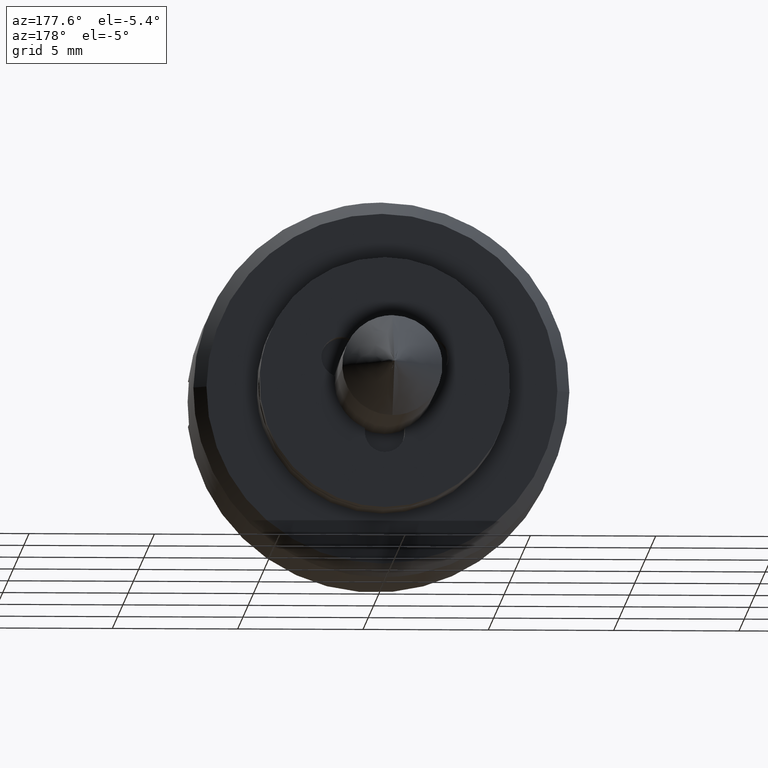
[diagram: clean part render]
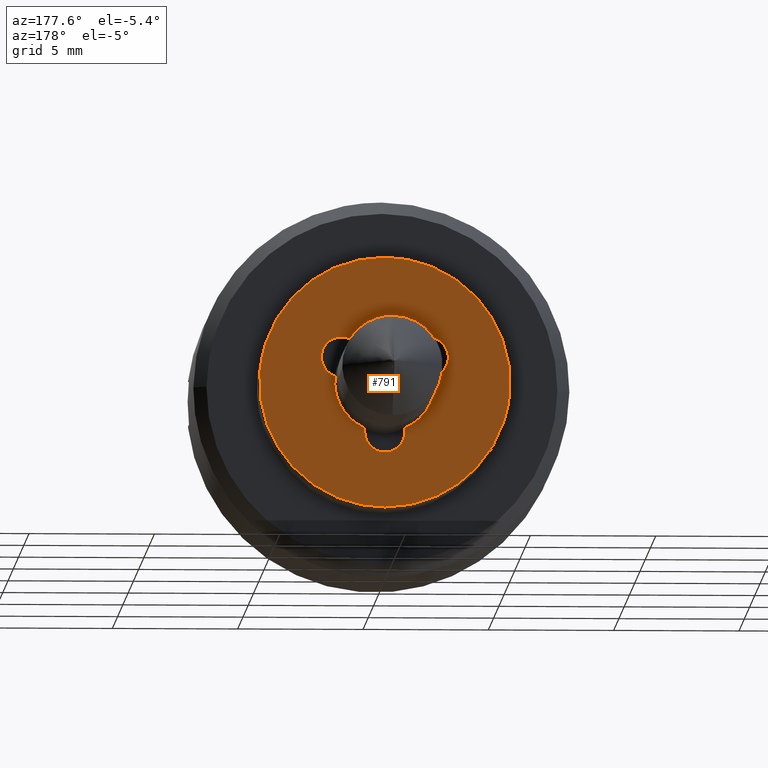
[diagram: same view with one face highlighted and labeled with its STEP entity id]
A machine part, auxiliary view. The second image highlights one B-rep face of the part: STEP entity #791.
In plain terms, the highlighted face is a freeform B-spline surface patch.
Its self-contained STEP definition (entity closure, byte-faithful):
#79=CARTESIAN_POINT('',(0.800000000000023,-4.984587023627478,0.392290968369244));
#80=VERTEX_POINT('',#79);
#86=CARTESIAN_POINT('',(0.800000000000023,0.0,5.0));
#87=VERTEX_POINT('',#86);
#88=CARTESIAN_POINT('',(0.800000000000023,0.0,5.0));
#89=CARTESIAN_POINT('',(0.800000000000023,-4.621956653367342,5.0));
#90=CARTESIAN_POINT('',(0.800000000000023,-4.984587023627478,0.392290968369244));
#98=(BOUNDED_CURVE()B_SPLINE_CURVE(2,(#88,#89,#90),.UNSPECIFIED.,.F.,.U.)B_SPLINE_CURVE_WITH_KNOTS((3,3),(0.0,0.236331455745088),.UNSPECIFIED.)CURVE()GEOMETRIC_REPRESENTATION_ITEM()RATIONAL_B_SPLINE_CURVE((1.0,0.723120476879809,0.969723679879621))REPRESENTATION_ITEM(''));
#99=EDGE_CURVE('',#87,#80,#98,.T.);
#101=CARTESIAN_POINT('',(0.800000000000023,4.984587023627478,-0.392290968369244));
#102=VERTEX_POINT('',#101);
#103=CARTESIAN_POINT('',(0.800000000000023,4.984587023627478,-0.392290968369244));
#104=CARTESIAN_POINT('',(0.800000000000023,5.0,-0.196448269438189));
#105=CARTESIAN_POINT('',(0.800000000000023,5.0,0.0));
#106=CARTESIAN_POINT('',(0.800000000000023,5.000000000000001,5.000000000000001));
#107=CARTESIAN_POINT('',(0.800000000000023,0.0,5.0));
#115=(BOUNDED_CURVE()B_SPLINE_CURVE(2,(#103,#104,#105,#106,#107),.UNSPECIFIED.,.F.,.U.)B_SPLINE_CURVE_WITH_KNOTS((3,2,3),(0.736331455745088,0.750000000000000,1.0),.UNSPECIFIED.)CURVE()GEOMETRIC_REPRESENTATION_ITEM()RATIONAL_B_SPLINE_CURVE((0.969723679879621,0.983986304306739,1.0,0.707106781186548,1.0))REPRESENTATION_ITEM(''));
#116=EDGE_CURVE('',#102,#87,#115,.T.);
#192=CARTESIAN_POINT('',(0.800000000000023,0.0,-5.0));
#193=VERTEX_POINT('',#192);
#194=CARTESIAN_POINT('',(0.800000000000023,0.0,-5.0));
#195=CARTESIAN_POINT('',(0.800000000000023,4.621956653367344,-5.000000000000001));
#196=CARTESIAN_POINT('',(0.800000000000023,4.984587023627478,-0.392290968369244));
#204=(BOUNDED_CURVE()B_SPLINE_CURVE(2,(#194,#195,#196),.UNSPECIFIED.,.F.,.U.)B_SPLINE_CURVE_WITH_KNOTS((3,3),(0.500000000000000,0.736331455745088),.UNSPECIFIED.)CURVE()GEOMETRIC_REPRESENTATION_ITEM()RATIONAL_B_SPLINE_CURVE((1.0,0.723120476879809,0.969723679879621))REPRESENTATION_ITEM(''));
#205=EDGE_CURVE('',#193,#102,#204,.T.);
#207=CARTESIAN_POINT('',(0.800000000000023,-4.984587023627478,0.392290968369244));
#208=CARTESIAN_POINT('',(0.800000000000023,-5.000000000000001,0.196448269438190));
#209=CARTESIAN_POINT('',(0.800000000000023,-5.0,0.0));
#210=CARTESIAN_POINT('',(0.800000000000023,-5.000000000000001,-5.000000000000001));
#211=CARTESIAN_POINT('',(0.800000000000023,0.0,-5.0));
#219=(BOUNDED_CURVE()B_SPLINE_CURVE(2,(#207,#208,#209,#210,#211),.UNSPECIFIED.,.F.,.U.)B_SPLINE_CURVE_WITH_KNOTS((3,2,3),(0.236331455745088,0.250000000000000,0.500000000000000),.UNSPECIFIED.)CURVE()GEOMETRIC_REPRESENTATION_ITEM()RATIONAL_B_SPLINE_CURVE((0.969723679879621,0.983986304306738,1.0,0.707106781186548,1.0))REPRESENTATION_ITEM(''));
#220=EDGE_CURVE('',#80,#193,#219,.T.);
#231=CARTESIAN_POINT('',(0.799999999999983,1.987450786638745,0.223694815963686));
#232=VERTEX_POINT('',#231);
#233=CARTESIAN_POINT('',(0.800000000000023,2.132097073922095,0.307206388863954));
#234=VERTEX_POINT('',#233);
#235=CARTESIAN_POINT('',(0.799999999999983,1.987450786638745,0.223694815963686));
#236=CARTESIAN_POINT('',(0.800000000000023,2.132097073922095,0.307206388863954));
#237=QUASI_UNIFORM_CURVE('',1,(#235,#236),.UNSPECIFIED.,.F.,.U.);
#238=EDGE_CURVE('',#232,#234,#237,.T.);
#276=CARTESIAN_POINT('',(0.800000000000023,0.800000000000000,-1.833030277982340));
#277=VERTEX_POINT('',#276);
#278=CARTESIAN_POINT('',(0.800000000000023,0.799999999999998,-1.833030277982337));
#279=CARTESIAN_POINT('',(0.800000000000023,2.152504370215349,-1.242748977575631));
#280=CARTESIAN_POINT('',(0.799999999999983,1.987450786638745,0.223694815963686));
#288=(BOUNDED_CURVE()B_SPLINE_CURVE(2,(#278,#279,#280),.UNSPECIFIED.,.F.,.U.)CURVE()GEOMETRIC_REPRESENTATION_ITEM()QUASI_UNIFORM_CURVE()RATIONAL_B_SPLINE_CURVE((1.0,0.804667731009349,1.0))REPRESENTATION_ITEM(''));
#289=EDGE_CURVE('',#277,#232,#288,.T.);
#320=CARTESIAN_POINT('',(0.800000000000023,0.800000000000000,-2.0));
#321=VERTEX_POINT('',#320);
#322=CARTESIAN_POINT('',(0.800000000000023,0.800000000000000,-2.0));
#323=CARTESIAN_POINT('',(0.800000000000023,0.800000000000000,-1.833030277982340));
#324=QUASI_UNIFORM_CURVE('',1,(#322,#323),.UNSPECIFIED.,.F.,.U.);
#325=EDGE_CURVE('',#321,#277,#324,.T.);
#361=CARTESIAN_POINT('',(0.800000000000023,-0.800000000000097,-2.0));
#362=VERTEX_POINT('',#361);
#363=CARTESIAN_POINT('',(0.800000000000023,-0.800000000000097,-2.0));
#364=CARTESIAN_POINT('',(0.800000000000023,-0.800000000000000,-2.800000000000000));
#365=CARTESIAN_POINT('',(0.800000000000023,0.0,-2.800000000000000));
#366=CARTESIAN_POINT('',(0.800000000000023,0.800000000000000,-2.800000000000000));
#367=CARTESIAN_POINT('',(0.800000000000023,0.800000000000000,-2.0));
#375=(BOUNDED_CURVE()B_SPLINE_CURVE(2,(#363,#364,#365,#366,#367),.UNSPECIFIED.,.F.,.U.)B_SPLINE_CURVE_WITH_KNOTS((3,2,3),(0.0,0.500000000000000,1.0),.UNSPECIFIED.)CURVE()GEOMETRIC_REPRESENTATION_ITEM()RATIONAL_B_SPLINE_CURVE((1.0,0.707106781186548,1.0,0.707106781186548,1.0))REPRESENTATION_ITEM(''));
#376=EDGE_CURVE('',#362,#321,#375,.T.);
#409=CARTESIAN_POINT('',(0.800000000000023,-0.800000000000098,-1.833030277982295));
#410=VERTEX_POINT('',#409);
#411=CARTESIAN_POINT('',(0.800000000000023,-0.800000000000098,-1.833030277982295));
#412=CARTESIAN_POINT('',(0.800000000000023,-0.800000000000097,-2.0));
#413=QUASI_UNIFORM_CURVE('',1,(#411,#412),.UNSPECIFIED.,.F.,.U.);
#414=EDGE_CURVE('',#410,#362,#413,.T.);
#446=CARTESIAN_POINT('',(0.800000000000023,-1.987450786638805,0.223694815963504));
#447=VERTEX_POINT('',#446);
#448=CARTESIAN_POINT('',(0.800000000000023,-1.987450786638805,0.223694815963504));
#449=CARTESIAN_POINT('',(0.800000000000023,-2.152504370215209,-1.242748977575605));
#450=CARTESIAN_POINT('',(0.800000000000023,-0.800000000000098,-1.833030277982294));
#458=(BOUNDED_CURVE()B_SPLINE_CURVE(2,(#448,#449,#450),.UNSPECIFIED.,.F.,.U.)CURVE()GEOMETRIC_REPRESENTATION_ITEM()QUASI_UNIFORM_CURVE()RATIONAL_B_SPLINE_CURVE((1.0,0.804667731009393,1.0))REPRESENTATION_ITEM(''));
#459=EDGE_CURVE('',#447,#410,#458,.T.);
#490=CARTESIAN_POINT('',(0.800000000000023,-2.132050807569145,0.307179676972608));
#491=VERTEX_POINT('',#490);
#492=CARTESIAN_POINT('',(0.800000000000023,-2.132050807569145,0.307179676972608));
#493=CARTESIAN_POINT('',(0.800000000000023,-1.987450786638805,0.223694815963504));
#494=QUASI_UNIFORM_CURVE('',1,(#492,#493),.UNSPECIFIED.,.F.,.U.);
#495=EDGE_CURVE('',#491,#447,#494,.T.);
#531=CARTESIAN_POINT('',(0.800000000000023,-1.332050807569004,1.692820323027560));
#532=VERTEX_POINT('',#531);
#533=CARTESIAN_POINT('',(0.800000000000023,-1.332050807569004,1.692820323027560));
#534=CARTESIAN_POINT('',(0.800000000000023,-2.024871130596405,2.092820323027436));
#535=CARTESIAN_POINT('',(0.800000000000023,-2.424871130596396,1.400000000000100));
#536=CARTESIAN_POINT('',(0.800000000000023,-2.824871130596387,0.707179676972764));
#537=CARTESIAN_POINT('',(0.800000000000023,-2.132050807569146,0.307179676972608));
#545=(BOUNDED_CURVE()B_SPLINE_CURVE(2,(#533,#534,#535,#536,#537),.UNSPECIFIED.,.F.,.U.)B_SPLINE_CURVE_WITH_KNOTS((3,2,3),(0.0,0.500000000000000,1.0),.UNSPECIFIED.)CURVE()GEOMETRIC_REPRESENTATION_ITEM()RATIONAL_B_SPLINE_CURVE((1.0,0.707106781186632,1.0,0.707106781186632,1.0))REPRESENTATION_ITEM(''));
#546=EDGE_CURVE('',#532,#491,#545,.T.);
#579=CARTESIAN_POINT('',(0.800000000000023,-1.187450786638688,1.609335462018770));
#580=VERTEX_POINT('',#579);
#581=CARTESIAN_POINT('',(0.800000000000023,-1.187450786638688,1.609335462018770));
#582=CARTESIAN_POINT('',(0.800000000000023,-1.332050807569004,1.692820323027560));
#583=QUASI_UNIFORM_CURVE('',1,(#581,#582),.UNSPECIFIED.,.F.,.U.);
#584=EDGE_CURVE('',#580,#532,#583,.T.);
#616=CARTESIAN_POINT('',(0.800000000000023,1.187450786638706,1.609335462018770));
#617=VERTEX_POINT('',#616);
#618=CARTESIAN_POINT('',(0.800000000000023,1.187450786638706,1.609335462018770));
#619=CARTESIAN_POINT('',(0.800000000000023,9.324139E-015,2.485497955151230));
#620=CARTESIAN_POINT('',(0.800000000000023,-1.187450786638687,1.609335462018769));
#628=(BOUNDED_CURVE()B_SPLINE_CURVE(2,(#618,#619,#620),.UNSPECIFIED.,.F.,.U.)CURVE()GEOMETRIC_REPRESENTATION_ITEM()QUASI_UNIFORM_CURVE()RATIONAL_B_SPLINE_CURVE((1.0,0.804667731009382,1.0))REPRESENTATION_ITEM(''));
#629=EDGE_CURVE('',#617,#580,#628,.T.);
#660=CARTESIAN_POINT('',(0.800000000000023,1.332097073922000,1.692847034919070));
#661=VERTEX_POINT('',#660);
#662=CARTESIAN_POINT('',(0.800000000000023,1.332097073922000,1.692847034919070));
#663=CARTESIAN_POINT('',(0.800000000000023,1.187450786638706,1.609335462018770));
#664=QUASI_UNIFORM_CURVE('',1,(#662,#663),.UNSPECIFIED.,.F.,.U.);
#665=EDGE_CURVE('',#661,#617,#664,.T.);
#701=CARTESIAN_POINT('',(0.800000000000023,2.132097073922094,0.307206388863956));
#702=CARTESIAN_POINT('',(0.800000000000023,2.532097073922106,0.538146496539805));
#703=CARTESIAN_POINT('',(0.800000000000023,2.532097073922105,1.000026711891514));
#704=CARTESIAN_POINT('',(0.800000000000023,2.532097073922106,1.461906927243251));
#705=CARTESIAN_POINT('',(0.800000000000023,2.132097073922058,1.692847034919092));
#706=CARTESIAN_POINT('',(0.800000000000023,1.732097073922023,1.923787142594927));
#707=CARTESIAN_POINT('',(0.800000000000023,1.332097073922000,1.692847034919070));
#715=(BOUNDED_CURVE()B_SPLINE_CURVE(2,(#701,#702,#703,#704,#705,#706,#707),.UNSPECIFIED.,.F.,.U.)B_SPLINE_CURVE_WITH_KNOTS((3,2,2,3),(0.0,0.333333333333333,0.666666666666667,1.0),.UNSPECIFIED.)CURVE()GEOMETRIC_REPRESENTATION_ITEM()RATIONAL_B_SPLINE_CURVE((1.0,0.866025403784434,1.0,0.866025403784434,1.0,0.866025403784434,1.0))REPRESENTATION_ITEM(''));
#716=EDGE_CURVE('',#234,#661,#715,.T.);
#766=CARTESIAN_POINT('',(0.799999999999983,-5.497973763634255,5.499499980618060));
#767=CARTESIAN_POINT('',(0.799999999999983,5.497974031855157,5.499499980618060));
#768=CARTESIAN_POINT('',(0.799999999999983,-5.497973763634255,-5.499500248838961));
#769=CARTESIAN_POINT('',(0.799999999999983,5.497974031855157,-5.499500248838961));
#770=B_SPLINE_SURFACE_WITH_KNOTS('',1,1,((#766,#768),(#767,#769)),.UNSPECIFIED.,.F.,.F.,.U.,(2,2),(2,2),(0.0,10.995947795489410),(0.0,10.999000229457019),.UNSPECIFIED.);
#771=ORIENTED_EDGE('',*,*,#99,.T.);
#772=ORIENTED_EDGE('',*,*,#220,.T.);
#773=ORIENTED_EDGE('',*,*,#205,.T.);
#774=ORIENTED_EDGE('',*,*,#116,.T.);
#775=EDGE_LOOP('',(#771,#772,#773,#774));
#776=FACE_OUTER_BOUND('',#775,.T.);
#777=ORIENTED_EDGE('',*,*,#716,.F.);
#778=ORIENTED_EDGE('',*,*,#238,.F.);
#779=ORIENTED_EDGE('',*,*,#289,.F.);
#780=ORIENTED_EDGE('',*,*,#325,.F.);
#781=ORIENTED_EDGE('',*,*,#376,.F.);
#782=ORIENTED_EDGE('',*,*,#414,.F.);
#783=ORIENTED_EDGE('',*,*,#459,.F.);
#784=ORIENTED_EDGE('',*,*,#495,.F.);
#785=ORIENTED_EDGE('',*,*,#546,.F.);
#786=ORIENTED_EDGE('',*,*,#584,.F.);
#787=ORIENTED_EDGE('',*,*,#629,.F.);
#788=ORIENTED_EDGE('',*,*,#665,.F.);
#789=EDGE_LOOP('',(#777,#778,#779,#780,#781,#782,#783,#784,#785,#786,#787,#788));
#790=FACE_BOUND('',#789,.T.);
#791=ADVANCED_FACE('',(#776,#790),#770,.F.);